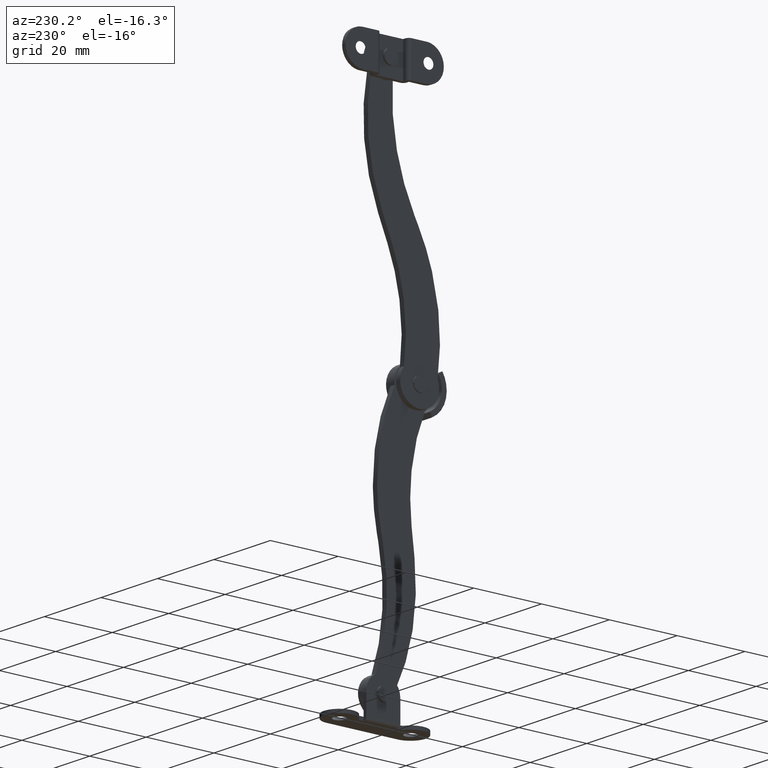
[diagram: clean part render]
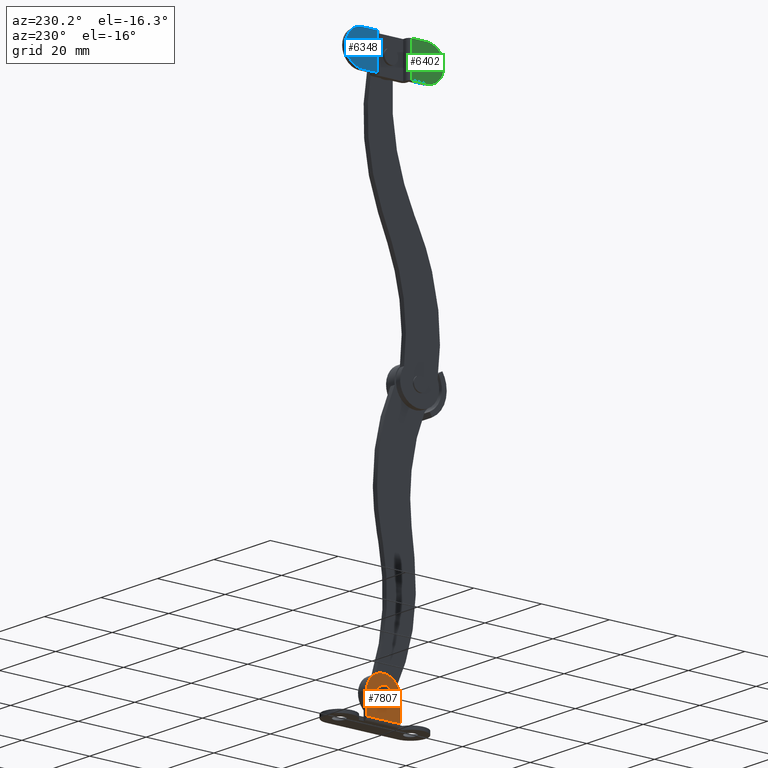
[diagram: same view with three faces highlighted in distinct colors, each labeled with its STEP entity id]
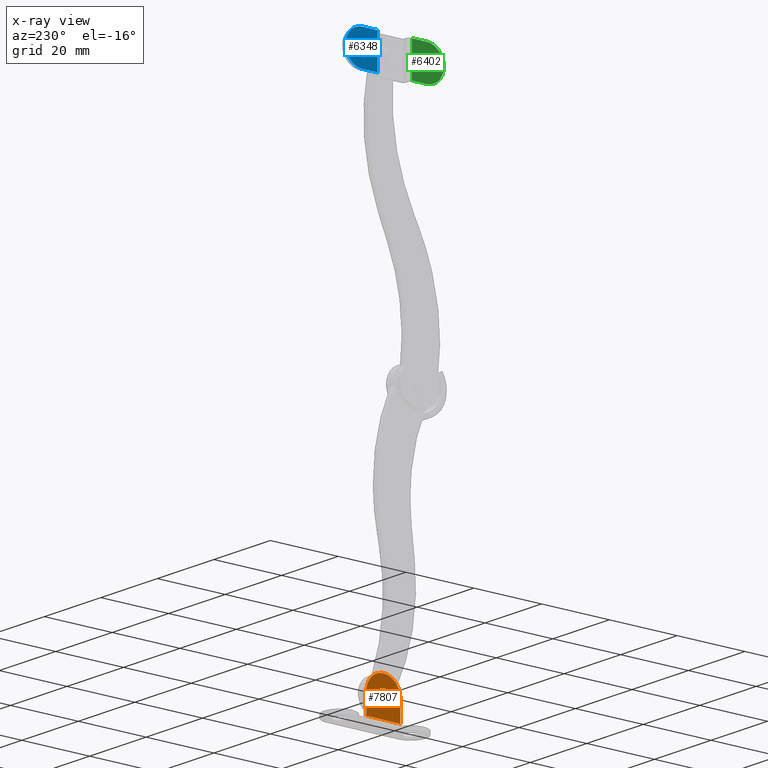
[diagram: x-ray of the same camera — body ghosted, the three highlighted faces saturated]
A machine part, auxiliary view with three faces highlighted in distinct colors.
The next image is the same camera in x-ray (body ghosted, the three faces saturated) — at least one of them is partly hidden behind the body in this view.
Their STEP definitions:

[orange] entity #7807 — the highlighted face is a freeform B-spline surface patch.
#6496=CARTESIAN_POINT('',(4.0,-1.495131809149380,-75.117691075972544));
#6497=VERTEX_POINT('',#6496);
#6503=CARTESIAN_POINT('',(4.0,0.000241560013077,-73.499999999803492));
#6504=VERTEX_POINT('',#6503);
#6505=CARTESIAN_POINT('',(4.000000000000001,-1.495131809149381,-75.117691075972544));
#6506=CARTESIAN_POINT('',(4.0,-1.499755904130481,-75.058937600414566));
#6507=CARTESIAN_POINT('',(4.0,-1.499755999997836,-75.000002439788602));
#6508=CARTESIAN_POINT('',(4.000000000000000,-1.499758439984939,-73.500002439790592));
#6509=CARTESIAN_POINT('',(4.0,0.000241560013077,-73.499999999803492));
#6517=(BOUNDED_CURVE()B_SPLINE_CURVE(2,(#6505,#6506,#6507,#6508,#6509),.UNSPECIFIED.,.F.,.U.)B_SPLINE_CURVE_WITH_KNOTS((3,2,3),(0.736331300606631,0.750000000000000,1.0),.UNSPECIFIED.)CURVE()GEOMETRIC_REPRESENTATION_ITEM()RATIONAL_B_SPLINE_CURVE((0.969723356117271,0.983986122550730,1.0,0.707106781186548,1.0))REPRESENTATION_ITEM(''));
#6518=EDGE_CURVE('',#6497,#6504,#6517,.T.);
#6520=CARTESIAN_POINT('',(4.0,1.495619809149740,-74.882308923630461));
#6521=VERTEX_POINT('',#6520);
#6522=CARTESIAN_POINT('',(4.0,0.000241560013077,-73.499999999803492));
#6523=CARTESIAN_POINT('',(4.0,1.386827297286496,-73.499997744302604));
#6524=CARTESIAN_POINT('',(4.000000000000001,1.495619809149740,-74.882308923630461));
#6532=(BOUNDED_CURVE()B_SPLINE_CURVE(2,(#6522,#6523,#6524),.UNSPECIFIED.,.F.,.U.)B_SPLINE_CURVE_WITH_KNOTS((3,3),(0.0,0.236331300606631),.UNSPECIFIED.)CURVE()GEOMETRIC_REPRESENTATION_ITEM()RATIONAL_B_SPLINE_CURVE((1.0,0.723120658635817,0.969723356117272))REPRESENTATION_ITEM(''));
#6533=EDGE_CURVE('',#6504,#6521,#6532,.T.);
#6579=CARTESIAN_POINT('',(4.0,0.000246439987282,-76.499999999799513));
#6580=VERTEX_POINT('',#6579);
#6581=CARTESIAN_POINT('',(4.0,1.495619809149740,-74.882308923630461));
#6582=CARTESIAN_POINT('',(4.000000000000000,1.500243904130841,-74.941062399188453));
#6583=CARTESIAN_POINT('',(4.0,1.500243999998195,-74.999997559814403));
#6584=CARTESIAN_POINT('',(4.000000000000000,1.500246439985298,-76.499997559812414));
#6585=CARTESIAN_POINT('',(4.0,0.000246439987282,-76.499999999799513));
#6593=(BOUNDED_CURVE()B_SPLINE_CURVE(2,(#6581,#6582,#6583,#6584,#6585),.UNSPECIFIED.,.F.,.U.)B_SPLINE_CURVE_WITH_KNOTS((3,2,3),(0.236331300606631,0.250000000000000,0.500000000000000),.UNSPECIFIED.)CURVE()GEOMETRIC_REPRESENTATION_ITEM()RATIONAL_B_SPLINE_CURVE((0.969723356117272,0.983986122550731,1.0,0.707106781186548,1.0))REPRESENTATION_ITEM(''));
#6594=EDGE_CURVE('',#6521,#6580,#6593,.T.);
#6596=CARTESIAN_POINT('',(4.0,0.000246439987282,-76.499999999799513));
#6597=CARTESIAN_POINT('',(4.000000000000001,-1.386339297286141,-76.500002255300402));
#6598=CARTESIAN_POINT('',(4.000000000000001,-1.495131809149381,-75.117691075972544));
#6606=(BOUNDED_CURVE()B_SPLINE_CURVE(2,(#6596,#6597,#6598),.UNSPECIFIED.,.F.,.U.)B_SPLINE_CURVE_WITH_KNOTS((3,3),(0.500000000000000,0.736331300606631),.UNSPECIFIED.)CURVE()GEOMETRIC_REPRESENTATION_ITEM()RATIONAL_B_SPLINE_CURVE((1.0,0.723120658635816,0.969723356117273))REPRESENTATION_ITEM(''));
#6607=EDGE_CURVE('',#6580,#6497,#6606,.T.);
#7328=CARTESIAN_POINT('',(4.0,5.000253759941980,-80.999991866503208));
#7329=VERTEX_POINT('',#7328);
#7352=CARTESIAN_POINT('',(4.0,-4.999746240044800,-81.000008133083909));
#7353=VERTEX_POINT('',#7352);
#7367=CARTESIAN_POINT('',(4.0,-4.999746240044800,-81.000008133083909));
#7368=CARTESIAN_POINT('',(4.0,5.000253759941980,-80.999991866503208));
#7369=QUASI_UNIFORM_CURVE('',1,(#7367,#7368),.UNSPECIFIED.,.F.,.U.);
#7370=EDGE_CURVE('',#7353,#7329,#7369,.T.);
#7414=CARTESIAN_POINT('',(4.0,5.000243999993570,-74.999991866511195));
#7415=VERTEX_POINT('',#7414);
#7421=CARTESIAN_POINT('',(4.0,-4.999755999993210,-75.000008133091910));
#7422=VERTEX_POINT('',#7421);
#7423=CARTESIAN_POINT('',(4.0,-4.999755999993206,-75.000008133091853));
#7424=CARTESIAN_POINT('',(4.0,-4.999760695750575,-72.113256787147563));
#7425=CARTESIAN_POINT('',(4.0,-2.499763043632591,-70.669877047530221));
#7426=CARTESIAN_POINT('',(4.0,0.000234608485429,-69.226497307912894));
#7427=CARTESIAN_POINT('',(4.0,2.500236956360824,-70.669868914239871));
#7428=CARTESIAN_POINT('',(4.0,5.000239304236196,-72.113240520566848));
#7429=CARTESIAN_POINT('',(4.0,5.000243999993566,-74.999991866511152));
#7437=(BOUNDED_CURVE()B_SPLINE_CURVE(2,(#7423,#7424,#7425,#7426,#7427,#7428,#7429),.UNSPECIFIED.,.F.,.U.)B_SPLINE_CURVE_WITH_KNOTS((3,2,2,3),(0.0,0.333333333333333,0.666666666666667,1.0),.UNSPECIFIED.)CURVE()GEOMETRIC_REPRESENTATION_ITEM()RATIONAL_B_SPLINE_CURVE((1.0,0.866025403784440,1.0,0.866025403784440,1.0,0.866025403784440,1.0))REPRESENTATION_ITEM(''));
#7438=EDGE_CURVE('',#7422,#7415,#7437,.T.);
#7677=CARTESIAN_POINT('',(4.0,-4.999746240044800,-81.000008133083909));
#7678=CARTESIAN_POINT('',(4.0,-4.999755999993210,-75.000008133091910));
#7679=QUASI_UNIFORM_CURVE('',1,(#7677,#7678),.UNSPECIFIED.,.F.,.U.);
#7680=EDGE_CURVE('',#7353,#7422,#7679,.T.);
#7756=CARTESIAN_POINT('',(4.0,5.000253759941980,-80.999991866503208));
#7757=CARTESIAN_POINT('',(4.0,5.000243999993570,-74.999991866511195));
#7758=QUASI_UNIFORM_CURVE('',1,(#7756,#7757),.UNSPECIFIED.,.F.,.U.);
#7759=EDGE_CURVE('',#7329,#7415,#7758,.T.);
#7790=CARTESIAN_POINT('',(4.0,-5.499265289286728,-69.450558966935461));
#7791=CARTESIAN_POINT('',(4.0,-5.499245608513016,-81.549459219322188));
#7792=CARTESIAN_POINT('',(4.0,5.499735235171924,-69.450541075322533));
#7793=CARTESIAN_POINT('',(4.0,5.499754915945637,-81.549441327709246));
#7794=B_SPLINE_SURFACE_WITH_KNOTS('',1,1,((#7790,#7792),(#7791,#7793)),.UNSPECIFIED.,.F.,.F.,.U.,(2,2),(2,2),(0.0,12.098900252402730),(0.0,10.999000524473210),.UNSPECIFIED.);
#7795=ORIENTED_EDGE('',*,*,#7680,.T.);
#7796=ORIENTED_EDGE('',*,*,#7438,.T.);
#7797=ORIENTED_EDGE('',*,*,#7759,.F.);
#7798=ORIENTED_EDGE('',*,*,#7370,.F.);
#7799=EDGE_LOOP('',(#7795,#7796,#7797,#7798));
#7800=FACE_OUTER_BOUND('',#7799,.T.);
#7801=ORIENTED_EDGE('',*,*,#6607,.F.);
#7802=ORIENTED_EDGE('',*,*,#6594,.F.);
#7803=ORIENTED_EDGE('',*,*,#6533,.F.);
#7804=ORIENTED_EDGE('',*,*,#6518,.F.);
#7805=EDGE_LOOP('',(#7801,#7802,#7803,#7804));
#7806=FACE_BOUND('',#7805,.T.);
#7807=ADVANCED_FACE('',(#7800,#7806),#7794,.F.);

[blue] entity #6348 — the highlighted face is a freeform B-spline surface patch.
#5384=CARTESIAN_POINT('',(-2.168404E-019,8.504623809200098,75.117732477820780));
#5385=VERTEX_POINT('',#5384);
#5391=CARTESIAN_POINT('',(0.0,9.999997561240917,76.500046266578622));
#5392=VERTEX_POINT('',#5391);
#5393=CARTESIAN_POINT('',(0.0,9.999997561240917,76.500046266578622));
#5394=CARTESIAN_POINT('',(0.0,8.613411823967512,76.500044011077748));
#5395=CARTESIAN_POINT('',(-2.168404E-019,8.504623809200098,75.117732477820780));
#5403=(BOUNDED_CURVE()B_SPLINE_CURVE(2,(#5393,#5394,#5395),.UNSPECIFIED.,.F.,.U.)B_SPLINE_CURVE_WITH_KNOTS((3,3),(0.0,0.236331300606629),.UNSPECIFIED.)CURVE()GEOMETRIC_REPRESENTATION_ITEM()RATIONAL_B_SPLINE_CURVE((1.0,0.723120658635819,0.969723356117268))REPRESENTATION_ITEM(''));
#5404=EDGE_CURVE('',#5392,#5385,#5403,.T.);
#5406=CARTESIAN_POINT('',(-2.168404E-019,11.495376193255940,74.882360055340442));
#5407=VERTEX_POINT('',#5406);
#5408=CARTESIAN_POINT('',(-2.168404E-019,11.495376193255941,74.882360055340442));
#5409=CARTESIAN_POINT('',(0.0,11.500000097093384,74.941113545941761));
#5410=CARTESIAN_POINT('',(0.0,11.500000001226031,75.000048706567711));
#5411=CARTESIAN_POINT('',(0.0,11.499997561238933,76.500048706565721));
#5412=CARTESIAN_POINT('',(0.0,9.999997561240917,76.500046266578622));
#5420=(BOUNDED_CURVE()B_SPLINE_CURVE(2,(#5408,#5409,#5410,#5411,#5412),.UNSPECIFIED.,.F.,.U.)B_SPLINE_CURVE_WITH_KNOTS((3,2,3),(0.736331300606631,0.750000000000000,1.0),.UNSPECIFIED.)CURVE()GEOMETRIC_REPRESENTATION_ITEM()RATIONAL_B_SPLINE_CURVE((0.969723356117271,0.983986122550730,1.0,0.707106781186548,1.0))REPRESENTATION_ITEM(''));
#5421=EDGE_CURVE('',#5407,#5392,#5420,.T.);
#5527=CARTESIAN_POINT('',(0.0,10.000002441215120,73.500046266582586));
#5528=VERTEX_POINT('',#5527);
#5529=CARTESIAN_POINT('',(0.0,10.000002441215120,73.500046266582586));
#5530=CARTESIAN_POINT('',(0.0,11.386588178488543,73.500048522083461));
#5531=CARTESIAN_POINT('',(-2.168404E-019,11.495376193255943,74.882360055340442));
#5539=(BOUNDED_CURVE()B_SPLINE_CURVE(2,(#5529,#5530,#5531),.UNSPECIFIED.,.F.,.U.)B_SPLINE_CURVE_WITH_KNOTS((3,3),(0.500000000000000,0.736331300606631),.UNSPECIFIED.)CURVE()GEOMETRIC_REPRESENTATION_ITEM()RATIONAL_B_SPLINE_CURVE((1.0,0.723120658635816,0.969723356117273))REPRESENTATION_ITEM(''));
#5540=EDGE_CURVE('',#5528,#5407,#5539,.T.);
#5542=CARTESIAN_POINT('',(-2.168404E-019,8.504623809200098,75.117732477820780));
#5543=CARTESIAN_POINT('',(0.0,8.499999905362650,75.058978987219461));
#5544=CARTESIAN_POINT('',(0.0,8.500000001230005,75.000043826593497));
#5545=CARTESIAN_POINT('',(0.0,8.500002441217106,73.500043826595487));
#5546=CARTESIAN_POINT('',(0.0,10.000002441215120,73.500046266582586));
#5554=(BOUNDED_CURVE()B_SPLINE_CURVE(2,(#5542,#5543,#5544,#5545,#5546),.UNSPECIFIED.,.F.,.U.)B_SPLINE_CURVE_WITH_KNOTS((3,2,3),(0.236331300606629,0.250000000000000,0.500000000000000),.UNSPECIFIED.)CURVE()GEOMETRIC_REPRESENTATION_ITEM()RATIONAL_B_SPLINE_CURVE((0.969723356117269,0.983986122550729,1.0,0.707106781186548,1.0))REPRESENTATION_ITEM(''));
#5555=EDGE_CURVE('',#5385,#5528,#5554,.T.);
#5778=CARTESIAN_POINT('',(0.0,9.499991867938229,80.000045453245008));
#5779=VERTEX_POINT('',#5778);
#5802=CARTESIAN_POINT('',(0.0,9.500008134518920,70.000045453258210));
#5803=VERTEX_POINT('',#5802);
#5809=CARTESIAN_POINT('',(0.0,9.499991867938228,80.000045453244994));
#5810=CARTESIAN_POINT('',(0.0,14.499991867931616,80.000053586535330));
#5811=CARTESIAN_POINT('',(0.0,14.500000001221959,75.000053586541952));
#5812=CARTESIAN_POINT('',(0.0,14.500008134512303,70.000053586548560));
#5813=CARTESIAN_POINT('',(0.0,9.500008134518911,70.000045453258224));
#5821=(BOUNDED_CURVE()B_SPLINE_CURVE(2,(#5809,#5810,#5811,#5812,#5813),.UNSPECIFIED.,.F.,.U.)B_SPLINE_CURVE_WITH_KNOTS((3,2,3),(0.0,0.500000000000000,1.0),.UNSPECIFIED.)CURVE()GEOMETRIC_REPRESENTATION_ITEM()RATIONAL_B_SPLINE_CURVE((1.0,0.707106781186548,1.0,0.707106781186548,1.0))REPRESENTATION_ITEM(''));
#5822=EDGE_CURVE('',#5779,#5803,#5821,.T.);
#6208=CARTESIAN_POINT('',(0.0,5.022478242394790,80.000038169861298));
#6209=VERTEX_POINT('',#6208);
#6225=CARTESIAN_POINT('',(0.0,5.022494508975470,70.000038169874486));
#6226=VERTEX_POINT('',#6225);
#6227=CARTESIAN_POINT('',(0.0,5.022494508975470,70.000038169874486));
#6228=CARTESIAN_POINT('',(0.0,5.022478242394790,80.000038169861298));
#6229=QUASI_UNIFORM_CURVE('',1,(#6227,#6228),.UNSPECIFIED.,.F.,.U.);
#6230=EDGE_CURVE('',#6226,#6209,#6229,.T.);
#6272=CARTESIAN_POINT('',(0.0,9.499991867938229,80.000045453245008));
#6273=CARTESIAN_POINT('',(0.0,5.022478242394790,80.000038169861298));
#6274=QUASI_UNIFORM_CURVE('',1,(#6272,#6273),.UNSPECIFIED.,.F.,.U.);
#6275=EDGE_CURVE('',#5779,#6209,#6274,.T.);
#6307=CARTESIAN_POINT('',(0.0,9.500008134518920,70.000045453258210));
#6308=CARTESIAN_POINT('',(0.0,5.022494508975470,70.000038169874486));
#6309=QUASI_UNIFORM_CURVE('',1,(#6307,#6308),.UNSPECIFIED.,.F.,.U.);
#6310=EDGE_CURVE('',#5803,#6226,#6309,.T.);
#6331=CARTESIAN_POINT('',(0.0,4.549075375741779,80.499541501710112));
#6332=CARTESIAN_POINT('',(0.0,4.549093267367364,69.500533208492214));
#6333=CARTESIAN_POINT('',(0.0,14.973393109539341,80.499558458510649));
#6334=CARTESIAN_POINT('',(0.0,14.973411001164919,69.500550165292765));
#6335=B_SPLINE_SURFACE_WITH_KNOTS('',1,1,((#6331,#6333),(#6332,#6334)),.UNSPECIFIED.,.F.,.F.,.U.,(2,2),(2,2),(0.0,10.999008293232450),(0.0,10.424317733811350),.UNSPECIFIED.);
#6336=ORIENTED_EDGE('',*,*,#6310,.T.);
#6337=ORIENTED_EDGE('',*,*,#6230,.T.);
#6338=ORIENTED_EDGE('',*,*,#6275,.F.);
#6339=ORIENTED_EDGE('',*,*,#5822,.T.);
#6340=EDGE_LOOP('',(#6336,#6337,#6338,#6339));
#6341=FACE_OUTER_BOUND('',#6340,.T.);
#6342=ORIENTED_EDGE('',*,*,#5540,.T.);
#6343=ORIENTED_EDGE('',*,*,#5421,.T.);
#6344=ORIENTED_EDGE('',*,*,#5404,.T.);
#6345=ORIENTED_EDGE('',*,*,#5555,.T.);
#6346=EDGE_LOOP('',(#6342,#6343,#6344,#6345));
#6347=FACE_BOUND('',#6346,.T.);
#6348=ADVANCED_FACE('',(#6341,#6347),#6335,.F.);

[green] entity #6402 — the highlighted face is a freeform B-spline surface patch.
#5044=CARTESIAN_POINT('',(-2.168404E-019,-11.495376190773550,75.117699944659378));
#5045=VERTEX_POINT('',#5044);
#5051=CARTESIAN_POINT('',(0.0,-10.000002438732730,76.500013733417219));
#5052=VERTEX_POINT('',#5051);
#5053=CARTESIAN_POINT('',(0.0,-10.000002438732730,76.500013733417219));
#5054=CARTESIAN_POINT('',(0.0,-11.386588176006137,76.500011477916331));
#5055=CARTESIAN_POINT('',(-2.168404E-019,-11.495376190773554,75.117699944659378));
#5063=(BOUNDED_CURVE()B_SPLINE_CURVE(2,(#5053,#5054,#5055),.UNSPECIFIED.,.F.,.U.)B_SPLINE_CURVE_WITH_KNOTS((3,3),(0.0,0.236331300606629),.UNSPECIFIED.)CURVE()GEOMETRIC_REPRESENTATION_ITEM()RATIONAL_B_SPLINE_CURVE((1.0,0.723120658635819,0.969723356117268))REPRESENTATION_ITEM(''));
#5064=EDGE_CURVE('',#5052,#5045,#5063,.T.);
#5066=CARTESIAN_POINT('',(-2.168404E-019,-8.504623806717707,74.882327522179025));
#5067=VERTEX_POINT('',#5066);
#5068=CARTESIAN_POINT('',(-2.168404E-019,-8.504623806717707,74.882327522179025));
#5069=CARTESIAN_POINT('',(0.0,-8.499999902880258,74.941081012780359));
#5070=CARTESIAN_POINT('',(0.0,-8.499999998747613,75.000016173406308));
#5071=CARTESIAN_POINT('',(0.0,-8.500002438734715,76.500016173404319));
#5072=CARTESIAN_POINT('',(0.0,-10.000002438732730,76.500013733417219));
#5080=(BOUNDED_CURVE()B_SPLINE_CURVE(2,(#5068,#5069,#5070,#5071,#5072),.UNSPECIFIED.,.F.,.U.)B_SPLINE_CURVE_WITH_KNOTS((3,2,3),(0.736331300606631,0.750000000000000,1.0),.UNSPECIFIED.)CURVE()GEOMETRIC_REPRESENTATION_ITEM()RATIONAL_B_SPLINE_CURVE((0.969723356117271,0.983986122550730,1.0,0.707106781186548,1.0))REPRESENTATION_ITEM(''));
#5081=EDGE_CURVE('',#5067,#5052,#5080,.T.);
#5187=CARTESIAN_POINT('',(0.0,-9.999997558758526,73.500013733421184));
#5188=VERTEX_POINT('',#5187);
#5189=CARTESIAN_POINT('',(0.0,-9.999997558758526,73.500013733421184));
#5190=CARTESIAN_POINT('',(0.0,-8.613411821485101,73.500015988922030));
#5191=CARTESIAN_POINT('',(-2.168404E-019,-8.504623806717707,74.882327522179025));
#5199=(BOUNDED_CURVE()B_SPLINE_CURVE(2,(#5189,#5190,#5191),.UNSPECIFIED.,.F.,.U.)B_SPLINE_CURVE_WITH_KNOTS((3,3),(0.500000000000000,0.736331300606631),.UNSPECIFIED.)CURVE()GEOMETRIC_REPRESENTATION_ITEM()RATIONAL_B_SPLINE_CURVE((1.0,0.723120658635816,0.969723356117273))REPRESENTATION_ITEM(''));
#5200=EDGE_CURVE('',#5188,#5067,#5199,.T.);
#5202=CARTESIAN_POINT('',(-2.168404E-019,-11.495376190773554,75.117699944659378));
#5203=CARTESIAN_POINT('',(0.0,-11.500000094610998,75.058946454058059));
#5204=CARTESIAN_POINT('',(0.0,-11.499999998743640,75.000011293432109));
#5205=CARTESIAN_POINT('',(0.0,-11.499997558756542,73.500011293434085));
#5206=CARTESIAN_POINT('',(0.0,-9.999997558758526,73.500013733421184));
#5214=(BOUNDED_CURVE()B_SPLINE_CURVE(2,(#5202,#5203,#5204,#5205,#5206),.UNSPECIFIED.,.F.,.U.)B_SPLINE_CURVE_WITH_KNOTS((3,2,3),(0.236331300606629,0.250000000000000,0.500000000000000),.UNSPECIFIED.)CURVE()GEOMETRIC_REPRESENTATION_ITEM()RATIONAL_B_SPLINE_CURVE((0.969723356117268,0.983986122550729,1.0,0.707106781186548,1.0))REPRESENTATION_ITEM(''));
#5215=EDGE_CURVE('',#5045,#5188,#5214,.T.);
#5709=CARTESIAN_POINT('',(0.0,-9.499991865455559,70.000014546754898));
#5710=VERTEX_POINT('',#5709);
#5733=CARTESIAN_POINT('',(0.0,-9.500008132036250,80.000014546741596));
#5734=VERTEX_POINT('',#5733);
#5740=CARTESIAN_POINT('',(0.0,-9.499991865455570,70.000014546754912));
#5741=CARTESIAN_POINT('',(0.0,-14.499991865448964,70.000006413464590));
#5742=CARTESIAN_POINT('',(0.0,-14.499999998739270,75.000006413457982));
#5743=CARTESIAN_POINT('',(0.0,-14.500008132029579,80.000006413451374));
#5744=CARTESIAN_POINT('',(0.0,-9.500008132036193,80.000014546741681));
#5752=(BOUNDED_CURVE()B_SPLINE_CURVE(2,(#5740,#5741,#5742,#5743,#5744),.UNSPECIFIED.,.F.,.U.)B_SPLINE_CURVE_WITH_KNOTS((3,2,3),(0.0,0.500000000000000,1.0),.UNSPECIFIED.)CURVE()GEOMETRIC_REPRESENTATION_ITEM()RATIONAL_B_SPLINE_CURVE((1.0,0.707106781186548,1.0,0.707106781186548,1.0))REPRESENTATION_ITEM(''));
#5753=EDGE_CURVE('',#5710,#5734,#5752,.T.);
#6055=CARTESIAN_POINT('',(2.220446E-016,-5.021700506493210,80.000021831416802));
#6056=VERTEX_POINT('',#6055);
#6079=CARTESIAN_POINT('',(2.220446E-016,-5.021684239912530,70.000021831430104));
#6080=VERTEX_POINT('',#6079);
#6096=CARTESIAN_POINT('',(2.220446E-016,-5.021684239912530,70.000021831430104));
#6097=CARTESIAN_POINT('',(2.220446E-016,-5.021700506493210,80.000021831416802));
#6098=QUASI_UNIFORM_CURVE('',1,(#6096,#6097),.UNSPECIFIED.,.F.,.U.);
#6099=EDGE_CURVE('',#6080,#6056,#6098,.T.);
#6282=CARTESIAN_POINT('',(2.220446E-016,-5.021700506493210,80.000021831416802));
#6283=CARTESIAN_POINT('',(0.0,-9.500008132036250,80.000014546741596));
#6284=QUASI_UNIFORM_CURVE('',1,(#6282,#6283),.UNSPECIFIED.,.F.,.U.);
#6285=EDGE_CURVE('',#6056,#5734,#6284,.T.);
#6297=CARTESIAN_POINT('',(2.220446E-016,-5.021684239912530,70.000021831430104));
#6298=CARTESIAN_POINT('',(0.0,-9.499991865455559,70.000014546754898));
#6299=QUASI_UNIFORM_CURVE('',1,(#6297,#6298),.UNSPECIFIED.,.F.,.U.);
#6300=EDGE_CURVE('',#6080,#5710,#6299,.T.);
#6385=CARTESIAN_POINT('',(0.0,-14.973450392076179,80.499509745235926));
#6386=CARTESIAN_POINT('',(0.0,-14.973432500450590,69.500501452018185));
#6387=CARTESIAN_POINT('',(0.0,-4.548259617262847,80.499526703456624));
#6388=CARTESIAN_POINT('',(0.0,-4.548241725637265,69.500518410238882));
#6389=B_SPLINE_SURFACE_WITH_KNOTS('',1,1,((#6385,#6387),(#6386,#6388)),.UNSPECIFIED.,.F.,.F.,.U.,(2,2),(2,2),(0.0,10.999008293232290),(0.0,10.425190774827120),.UNSPECIFIED.);
#6390=ORIENTED_EDGE('',*,*,#6285,.F.);
#6391=ORIENTED_EDGE('',*,*,#6099,.F.);
#6392=ORIENTED_EDGE('',*,*,#6300,.T.);
#6393=ORIENTED_EDGE('',*,*,#5753,.T.);
#6394=EDGE_LOOP('',(#6390,#6391,#6392,#6393));
#6395=FACE_OUTER_BOUND('',#6394,.T.);
#6396=ORIENTED_EDGE('',*,*,#5200,.T.);
#6397=ORIENTED_EDGE('',*,*,#5081,.T.);
#6398=ORIENTED_EDGE('',*,*,#5064,.T.);
#6399=ORIENTED_EDGE('',*,*,#5215,.T.);
#6400=EDGE_LOOP('',(#6396,#6397,#6398,#6399));
#6401=FACE_BOUND('',#6400,.T.);
#6402=ADVANCED_FACE('',(#6395,#6401),#6389,.F.);